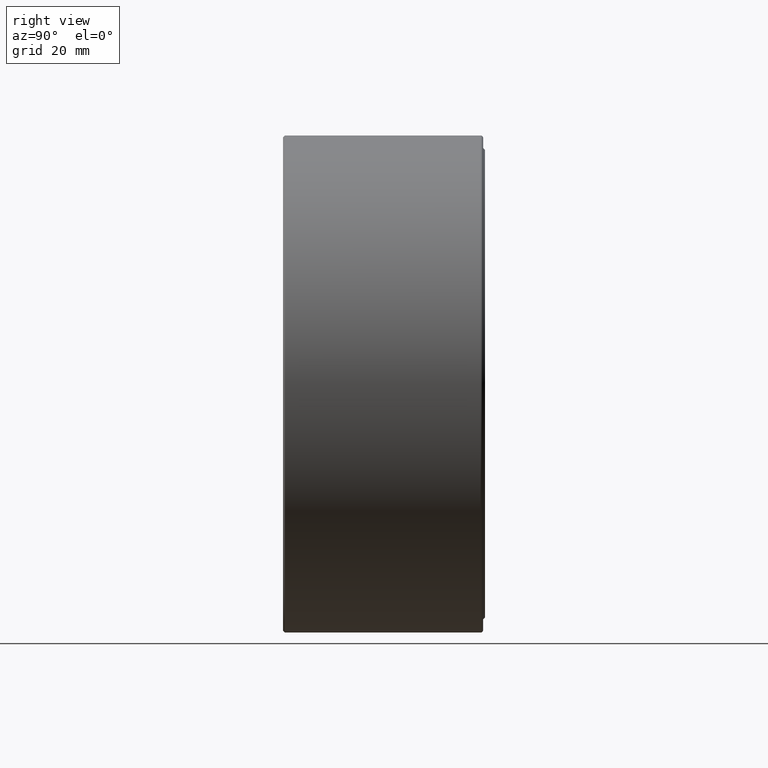
[diagram: clean part render]
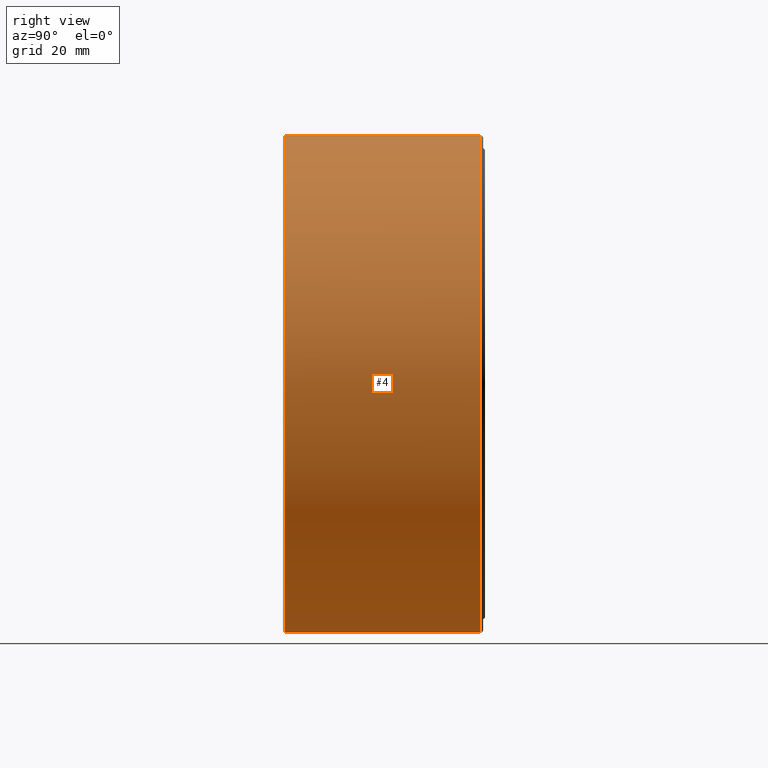
[diagram: same view with one face highlighted and labeled with its STEP entity id]
A machine part, right view. The second image highlights one B-rep face of the part: STEP entity #4.
In plain terms, the highlighted cylindrical surface (bore or boss wall) has radius 50.8 mm, axis along (-0, 1, -0).
Its self-contained STEP definition (entity closure, byte-faithful):
#4 = ADVANCED_FACE ( 'NONE', ( #586, #89 ), #112, .T. ) ;
#17 = CIRCLE ( 'NONE', #312, 1.999999999999999300 ) ;
#63 = ORIENTED_EDGE ( 'NONE', *, *, #352, .T. ) ;
#68 = DIRECTION ( 'NONE',  ( -0.0000000000000000000, 1.000000000000000000, -0.0000000000000000000 ) ) ;
#89 = FACE_OUTER_BOUND ( 'NONE', #104, .T. ) ;
#104 = EDGE_LOOP ( 'NONE', ( #63 ) ) ;
#112 = CYLINDRICAL_SURFACE ( 'NONE', #176, 1.999999999999999800 ) ;
#118 = DIRECTION ( 'NONE',  ( -0.0000000000000000000, 1.000000000000000000, -0.0000000000000000000 ) ) ;
#176 = AXIS2_PLACEMENT_3D ( 'NONE', #493, #262, #601 ) ;
#186 = CARTESIAN_POINT ( 'NONE',  ( 0.0000000000000000000, 0.01499999999999984000, 1.999999999999999300 ) ) ;
#235 = CIRCLE ( 'NONE', #471, 2.000000000000000000 ) ;
#262 = DIRECTION ( 'NONE',  ( -0.0000000000000000000, 1.000000000000000000, -0.0000000000000000000 ) ) ;
#312 = AXIS2_PLACEMENT_3D ( 'NONE', #384, #68, #469 ) ;
#339 = CARTESIAN_POINT ( 'NONE',  ( 0.0000000000000000000, 1.589999999999999400, 0.0000000000000000000 ) ) ;
#352 = EDGE_CURVE ( 'NONE', #468, #468, #17, .T. ) ;
#378 = CARTESIAN_POINT ( 'NONE',  ( 0.0000000000000000000, 1.589999999999999400, 2.000000000000000000 ) ) ;
#384 = CARTESIAN_POINT ( 'NONE',  ( 0.0000000000000000000, 0.01499999999999984000, 0.0000000000000000000 ) ) ;
#468 = VERTEX_POINT ( 'NONE', #186 ) ;
#469 = DIRECTION ( 'NONE',  ( 0.0000000000000000000, 0.0000000000000000000, 1.000000000000000000 ) ) ;
#471 = AXIS2_PLACEMENT_3D ( 'NONE', #339, #118, #583 ) ;
#493 = CARTESIAN_POINT ( 'NONE',  ( 0.0000000000000000000, 0.0000000000000000000, 0.0000000000000000000 ) ) ;
#495 = EDGE_LOOP ( 'NONE', ( #569 ) ) ;
#539 = EDGE_CURVE ( 'NONE', #563, #563, #235, .T. ) ;
#563 = VERTEX_POINT ( 'NONE', #378 ) ;
#569 = ORIENTED_EDGE ( 'NONE', *, *, #539, .F. ) ;
#583 = DIRECTION ( 'NONE',  ( 0.0000000000000000000, 0.0000000000000000000, 1.000000000000000000 ) ) ;
#586 = FACE_OUTER_BOUND ( 'NONE', #495, .T. ) ;
#601 = DIRECTION ( 'NONE',  ( 0.0000000000000000000, 0.0000000000000000000, 1.000000000000000000 ) ) ;